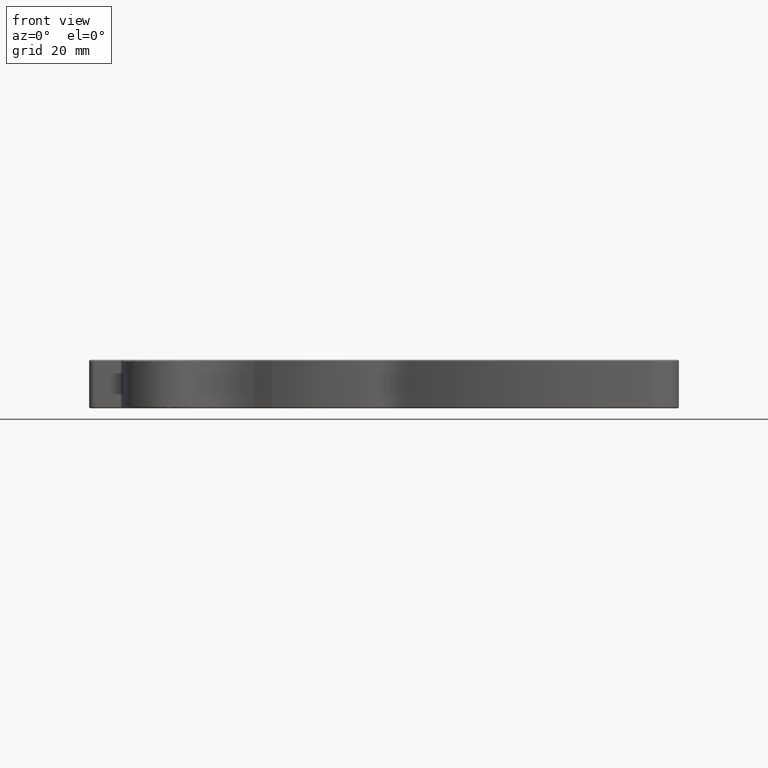
[diagram: clean part render]
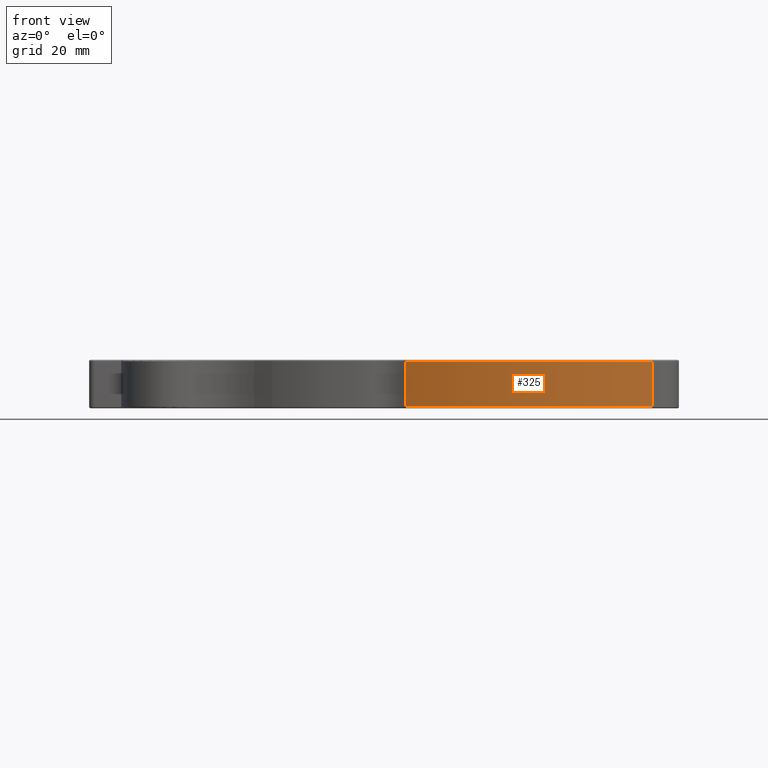
[diagram: same view with one face highlighted and labeled with its STEP entity id]
A machine part, front view. The second image highlights one B-rep face of the part: STEP entity #325.
In plain terms, the highlighted cylindrical surface (partial cylindrical patch) has radius 60.6294 mm, axis along (-0, -0, -1).
Its self-contained STEP definition (entity closure, byte-faithful):
#174 = DIRECTION ( 'NONE',  ( 1.000000000000000000, 0.0000000000000000000, 0.0000000000000000000 ) ) ;
#210 = DIRECTION ( 'NONE',  ( 0.0000000000000000000, 0.0000000000000000000, 1.000000000000000000 ) ) ;
#318 = CIRCLE ( 'NONE', #3287, 2.386983302157819953 ) ;
#325 = ADVANCED_FACE ( 'NONE', ( #1202 ), #1821, .T. ) ;
#349 = CARTESIAN_POINT ( 'NONE',  ( 5.706842577794001947, -5.050970220930997456, 0.009999999999999995004 ) ) ;
#537 = VERTEX_POINT ( 'NONE', #1579 ) ;
#642 = EDGE_CURVE ( 'NONE', #778, #1623, #1155, .T. ) ;
#778 = VERTEX_POINT ( 'NONE', #1351 ) ;
#956 = EDGE_CURVE ( 'NONE', #3346, #537, #318, .T. ) ;
#1014 = EDGE_LOOP ( 'NONE', ( #1722, #2597, #1302, #2204 ) ) ;
#1100 = CARTESIAN_POINT ( 'NONE',  ( 4.733603336189754707, -7.230533173309716233, 0.3150000000000000022 ) ) ;
#1155 = CIRCLE ( 'NONE', #3304, 2.386983302157819953 ) ;
#1158 = CARTESIAN_POINT ( 'NONE',  ( 4.733603336189754707, -7.230533173309716233, 0.3049999999999999933 ) ) ;
#1163 = DIRECTION ( 'NONE',  ( -1.000000000000000000, 0.0000000000000000000, 0.0000000000000000000 ) ) ;
#1193 = DIRECTION ( 'NONE',  ( -0.0000000000000000000, -0.0000000000000000000, -1.000000000000000000 ) ) ;
#1202 = FACE_OUTER_BOUND ( 'NONE', #1014, .T. ) ;
#1302 = ORIENTED_EDGE ( 'NONE', *, *, #1716, .F. ) ;
#1351 = CARTESIAN_POINT ( 'NONE',  ( 6.336226959877573783, -7.353482888511539528, 0.3049999999999999933 ) ) ;
#1353 = VECTOR ( 'NONE', #3193, 39.37007874015748143 ) ;
#1451 = CARTESIAN_POINT ( 'NONE',  ( 4.733603336189754707, -7.230533173309716233, 0.009999999999999995004 ) ) ;
#1579 = CARTESIAN_POINT ( 'NONE',  ( 6.336226959877573783, -7.353482888511539528, 0.009999999999999995004 ) ) ;
#1623 = VERTEX_POINT ( 'NONE', #1158 ) ;
#1716 = EDGE_CURVE ( 'NONE', #778, #537, #2070, .T. ) ;
#1722 = ORIENTED_EDGE ( 'NONE', *, *, #1855, .T. ) ;
#1821 = CYLINDRICAL_SURFACE ( 'NONE', #2818, 2.386983302157819953 ) ;
#1855 = EDGE_CURVE ( 'NONE', #1623, #3346, #2386, .T. ) ;
#2070 = LINE ( 'NONE', #2915, #1353 ) ;
#2204 = ORIENTED_EDGE ( 'NONE', *, *, #642, .T. ) ;
#2386 = LINE ( 'NONE', #1100, #3102 ) ;
#2597 = ORIENTED_EDGE ( 'NONE', *, *, #956, .T. ) ;
#2701 = DIRECTION ( 'NONE',  ( -0.0000000000000000000, -0.0000000000000000000, -1.000000000000000000 ) ) ;
#2795 = CARTESIAN_POINT ( 'NONE',  ( 5.706842577794001947, -5.050970220930997456, 0.3150000000000000022 ) ) ;
#2818 = AXIS2_PLACEMENT_3D ( 'NONE', #2795, #1193, #1163 ) ;
#2915 = CARTESIAN_POINT ( 'NONE',  ( 6.336226959877573783, -7.353482888511539528, 0.3150000000000000022 ) ) ;
#3102 = VECTOR ( 'NONE', #2701, 39.37007874015748143 ) ;
#3193 = DIRECTION ( 'NONE',  ( -0.0000000000000000000, -0.0000000000000000000, -1.000000000000000000 ) ) ;
#3287 = AXIS2_PLACEMENT_3D ( 'NONE', #349, #210, #174 ) ;
#3292 = DIRECTION ( 'NONE',  ( 1.000000000000000000, 0.0000000000000000000, 0.0000000000000000000 ) ) ;
#3304 = AXIS2_PLACEMENT_3D ( 'NONE', #3452, #3436, #3292 ) ;
#3346 = VERTEX_POINT ( 'NONE', #1451 ) ;
#3436 = DIRECTION ( 'NONE',  ( -0.0000000000000000000, -0.0000000000000000000, -1.000000000000000000 ) ) ;
#3452 = CARTESIAN_POINT ( 'NONE',  ( 5.706842577794001947, -5.050970220930997456, 0.3049999999999999933 ) ) ;